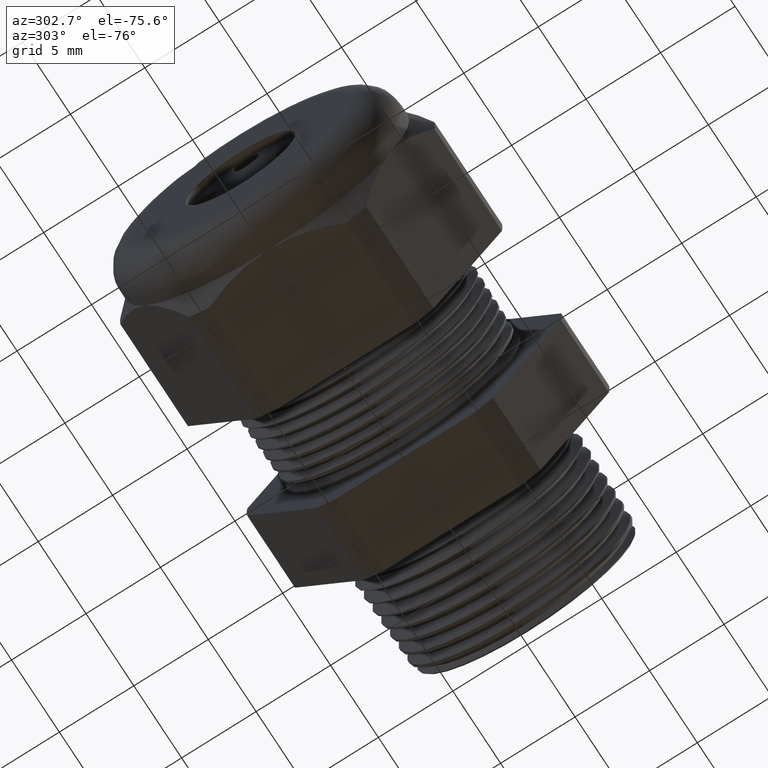
[diagram: clean part render]
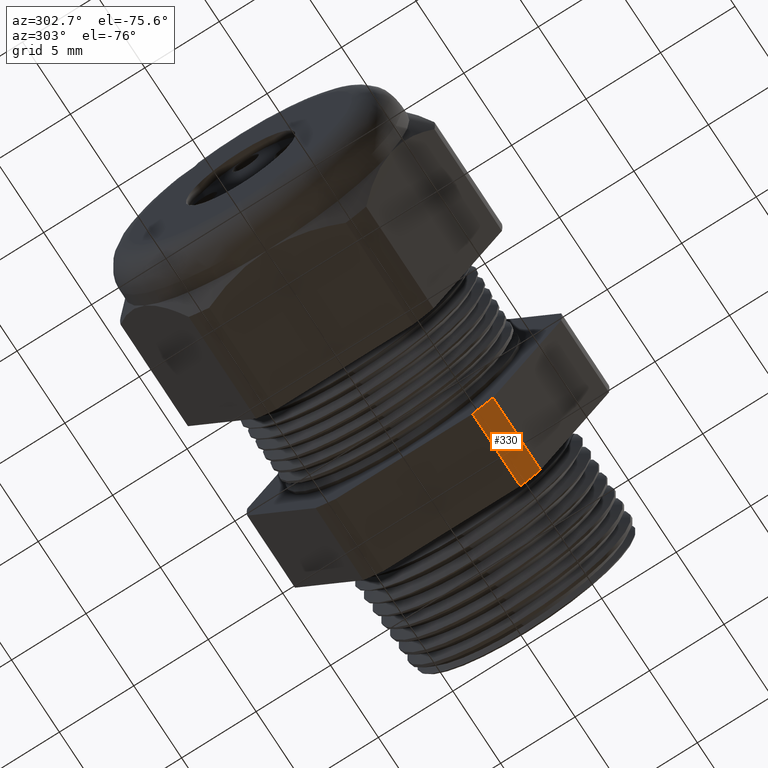
[diagram: same view with one face highlighted and labeled with its STEP entity id]
A machine part, auxiliary view. The second image highlights one B-rep face of the part: STEP entity #330.
In plain terms, the highlighted cylindrical surface (partial cylindrical patch) has radius 10.5727 mm, axis along (-1, 0, 0).
Its self-contained STEP definition (entity closure, byte-faithful):
#326 = EDGE_CURVE ( 'NONE', #4187, #327, #1876, .T. ) ;
#327 = VERTEX_POINT ( 'NONE', #1867 ) ;
#330 = ADVANCED_FACE ( 'NONE', ( #1924 ), #1922, .T. ) ;
#331 = EDGE_LOOP ( 'NONE', ( #332, #333, #334, #337 ) ) ;
#332 = ORIENTED_EDGE ( 'NONE', *, *, #326, .F. ) ;
#333 = ORIENTED_EDGE ( 'NONE', *, *, #4192, .F. ) ;
#334 = ORIENTED_EDGE ( 'NONE', *, *, #335, .T. ) ;
#335 = EDGE_CURVE ( 'NONE', #4179, #336, #1923, .T. ) ;
#336 = VERTEX_POINT ( 'NONE', #1914 ) ;
#337 = ORIENTED_EDGE ( 'NONE', *, *, #390, .F. ) ;
#390 = EDGE_CURVE ( 'NONE', #327, #336, #2009, .T. ) ;
#1867 = CARTESIAN_POINT ( 'NONE',  ( -0.5068503937007874400, -0.1806628420566883900, -0.3750000000000001100 ) ) ;
#1868 = DIRECTION ( 'NONE',  ( -1.000000000000000000, 0.0000000000000000000, 0.0000000000000000000 ) ) ;
#1869 = VECTOR ( 'NONE', #1868, 39.37007874015748100 ) ;
#1870 = CARTESIAN_POINT ( 'NONE',  ( 0.0000000000000000000, -0.1806628420566883900, -0.3750000000000001100 ) ) ;
#1876 = LINE ( 'NONE', #1870, #1869 ) ;
#1914 = CARTESIAN_POINT ( 'NONE',  ( -0.5068503937007874400, -0.2344281053908202100, -0.3439586107409880500 ) ) ;
#1915 = DIRECTION ( 'NONE',  ( -1.000000000000000000, 0.0000000000000000000, 0.0000000000000000000 ) ) ;
#1916 = VECTOR ( 'NONE', #1915, 39.37007874015748100 ) ;
#1917 = CARTESIAN_POINT ( 'NONE',  ( 0.0000000000000000000, -0.2344281053908202100, -0.3439586107409880500 ) ) ;
#1918 = DIRECTION ( 'NONE',  ( 0.0000000000000000000, 0.0000000000000000000, 1.000000000000000000 ) ) ;
#1919 = DIRECTION ( 'NONE',  ( -1.000000000000000000, 0.0000000000000000000, 0.0000000000000000000 ) ) ;
#1920 = CARTESIAN_POINT ( 'NONE',  ( 0.0000000000000000000, 0.0000000000000000000, 0.0000000000000000000 ) ) ;
#1921 = AXIS2_PLACEMENT_3D ( 'NONE', #1920, #1919, #1918 ) ;
#1922 = CYLINDRICAL_SURFACE ( 'NONE', #1921, 0.4162500000000000100 ) ;
#1923 = LINE ( 'NONE', #1917, #1916 ) ;
#1924 = FACE_OUTER_BOUND ( 'NONE', #331, .T. ) ;
#2005 = DIRECTION ( 'NONE',  ( 0.0000000000000000000, 0.0000000000000000000, 1.000000000000000000 ) ) ;
#2006 = DIRECTION ( 'NONE',  ( -1.000000000000000000, 0.0000000000000000000, 0.0000000000000000000 ) ) ;
#2007 = CARTESIAN_POINT ( 'NONE',  ( -0.5068503937007874400, 0.0000000000000000000, 0.0000000000000000000 ) ) ;
#2008 = AXIS2_PLACEMENT_3D ( 'NONE', #2007, #2006, #2005 ) ;
#2009 = CIRCLE ( 'NONE', #2008, 0.4162500000000000100 ) ;
#3584 = CARTESIAN_POINT ( 'NONE',  ( -0.3100000000000000000, -0.2344281053908202100, -0.3439586107409880500 ) ) ;
#3627 = DIRECTION ( 'NONE',  ( 0.0000000000000000000, 0.0000000000000000000, -1.000000000000000000 ) ) ;
#3628 = DIRECTION ( 'NONE',  ( 1.000000000000000000, 0.0000000000000000000, 0.0000000000000000000 ) ) ;
#3629 = CARTESIAN_POINT ( 'NONE',  ( -0.3100000000000000000, 0.0000000000000000000, 0.0000000000000000000 ) ) ;
#3630 = AXIS2_PLACEMENT_3D ( 'NONE', #3629, #3628, #3627 ) ;
#3631 = CIRCLE ( 'NONE', #3630, 0.4162500000000000100 ) ;
#3639 = CARTESIAN_POINT ( 'NONE',  ( -0.3100000000000000000, -0.1806628420566883900, -0.3750000000000001100 ) ) ;
#4179 = VERTEX_POINT ( 'NONE', #3584 ) ;
#4187 = VERTEX_POINT ( 'NONE', #3639 ) ;
#4192 = EDGE_CURVE ( 'NONE', #4179, #4187, #3631, .T. ) ;